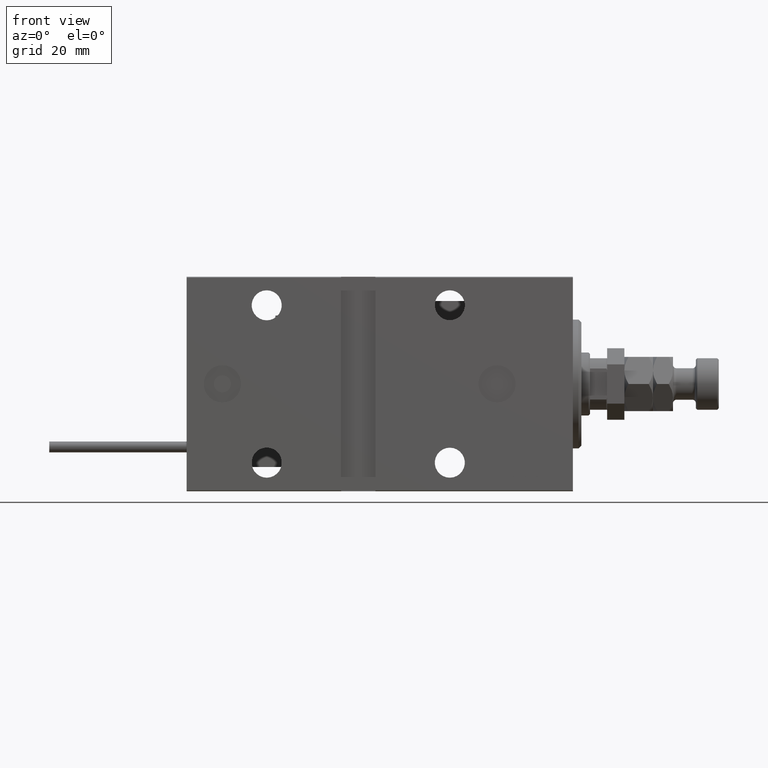
[diagram: clean part render]
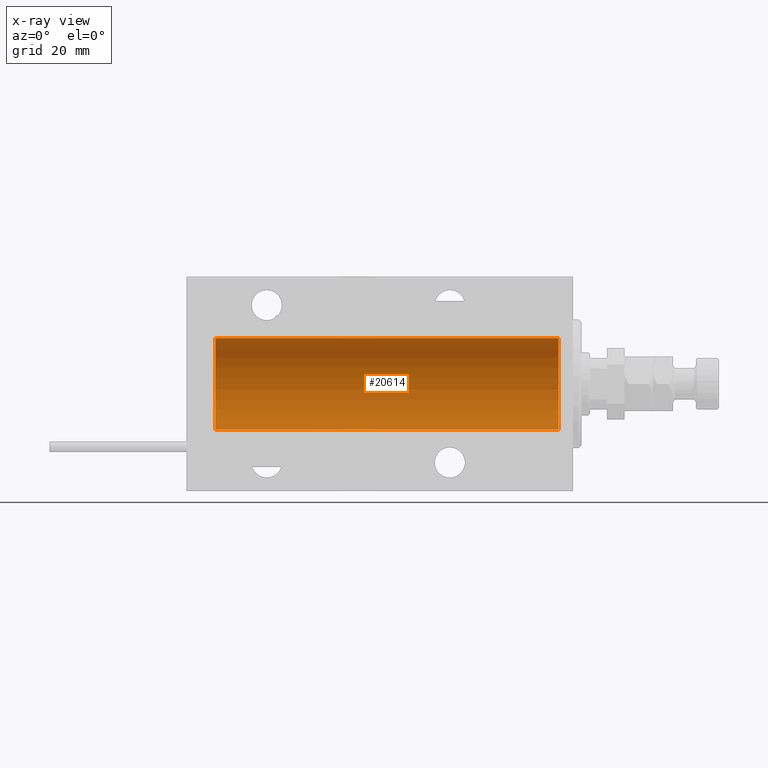
[diagram: x-ray — body ghosted, one internal face saturated and labeled with its STEP entity id]
A machine part, front view, then the same camera in x-ray: the body is ghosted and one INTERNAL B-rep face — a face not visible from any outside direction — is saturated and labeled: STEP entity #20614.
In plain terms, the highlighted cylindrical surface (partial cylindrical patch) has radius 16 mm, axis along (1, 0, -0).
Its self-contained STEP definition (entity closure, byte-faithful):
#91 = AXIS2_PLACEMENT_3D ( 'NONE', #34194, #2201, #18063 ) ;
#92 = LINE ( 'NONE', #31560, #41013 ) ;
#598 = DIRECTION ( 'NONE',  ( -1.000000000000000000, -0.000000000000000000, -0.000000000000000000 ) ) ;
#2201 = DIRECTION ( 'NONE',  ( -1.000000000000000000, -0.000000000000000000, -0.000000000000000000 ) ) ;
#2542 = EDGE_CURVE ( 'NONE', #38399, #12015, #92, .T. ) ;
#4640 = AXIS2_PLACEMENT_3D ( 'NONE', #39879, #27134, #39626 ) ;
#4804 = ORIENTED_EDGE ( 'NONE', *, *, #14132, .T. ) ;
#5054 = ORIENTED_EDGE ( 'NONE', *, *, #8399, .F. ) ;
#7134 = CARTESIAN_POINT ( 'NONE',  ( 5.000000000000004441, 0.000000000000000000, 0.000000000000000000 ) ) ;
#8399 = EDGE_CURVE ( 'NONE', #35018, #38399, #12942, .T. ) ;
#8997 = DIRECTION ( 'NONE',  ( -1.000000000000000000, -0.000000000000000000, -0.000000000000000000 ) ) ;
#9249 = CARTESIAN_POINT ( 'NONE',  ( 125.0000000000000000, 1.959434878635765131E-15, -16.00000000000000000 ) ) ;
#12015 = VERTEX_POINT ( 'NONE', #16980 ) ;
#12942 = CIRCLE ( 'NONE', #4640, 16.00000000000000000 ) ;
#14132 = EDGE_CURVE ( 'NONE', #36899, #12015, #41424, .T. ) ;
#15608 = CARTESIAN_POINT ( 'NONE',  ( 125.0000000000000000, 1.959434878635765131E-15, -16.00000000000000000 ) ) ;
#16980 = CARTESIAN_POINT ( 'NONE',  ( 5.000000000000004441, 0.000000000000000000, 16.00000000000000000 ) ) ;
#17813 = FACE_OUTER_BOUND ( 'NONE', #21987, .T. ) ;
#18063 = DIRECTION ( 'NONE',  ( 0.000000000000000000, 0.000000000000000000, 1.000000000000000000 ) ) ;
#19867 = DIRECTION ( 'NONE',  ( 0.000000000000000000, 0.000000000000000000, 1.000000000000000000 ) ) ;
#20614 = ADVANCED_FACE ( 'NONE', ( #17813 ), #37848, .F. ) ;
#21987 = EDGE_LOOP ( 'NONE', ( #5054, #40396, #4804, #39326 ) ) ;
#23089 = LINE ( 'NONE', #9249, #24504 ) ;
#24204 = CARTESIAN_POINT ( 'NONE',  ( 125.0000000000000000, 0.000000000000000000, 16.00000000000000000 ) ) ;
#24504 = VECTOR ( 'NONE', #8997, 1000.000000000000000 ) ;
#27134 = DIRECTION ( 'NONE',  ( -1.000000000000000000, 0.000000000000000000, 0.000000000000000000 ) ) ;
#28119 = AXIS2_PLACEMENT_3D ( 'NONE', #7134, #42788, #19867 ) ;
#31560 = CARTESIAN_POINT ( 'NONE',  ( 125.0000000000000000, 0.000000000000000000, 16.00000000000000000 ) ) ;
#34194 = CARTESIAN_POINT ( 'NONE',  ( 125.0000000000000000, 0.000000000000000000, 0.000000000000000000 ) ) ;
#35018 = VERTEX_POINT ( 'NONE', #15608 ) ;
#36899 = VERTEX_POINT ( 'NONE', #43196 ) ;
#37848 = CYLINDRICAL_SURFACE ( 'NONE', #91, 16.00000000000000000 ) ;
#38399 = VERTEX_POINT ( 'NONE', #24204 ) ;
#39326 = ORIENTED_EDGE ( 'NONE', *, *, #2542, .F. ) ;
#39626 = DIRECTION ( 'NONE',  ( 0.000000000000000000, 0.000000000000000000, 1.000000000000000000 ) ) ;
#39879 = CARTESIAN_POINT ( 'NONE',  ( 125.0000000000000000, 0.000000000000000000, 0.000000000000000000 ) ) ;
#40396 = ORIENTED_EDGE ( 'NONE', *, *, #50424, .T. ) ;
#41013 = VECTOR ( 'NONE', #598, 1000.000000000000000 ) ;
#41424 = CIRCLE ( 'NONE', #28119, 16.00000000000000000 ) ;
#42788 = DIRECTION ( 'NONE',  ( -1.000000000000000000, 0.000000000000000000, 0.000000000000000000 ) ) ;
#43196 = CARTESIAN_POINT ( 'NONE',  ( 5.000000000000004441, 1.959434878635765131E-15, -16.00000000000000000 ) ) ;
#50424 = EDGE_CURVE ( 'NONE', #35018, #36899, #23089, .T. ) ;